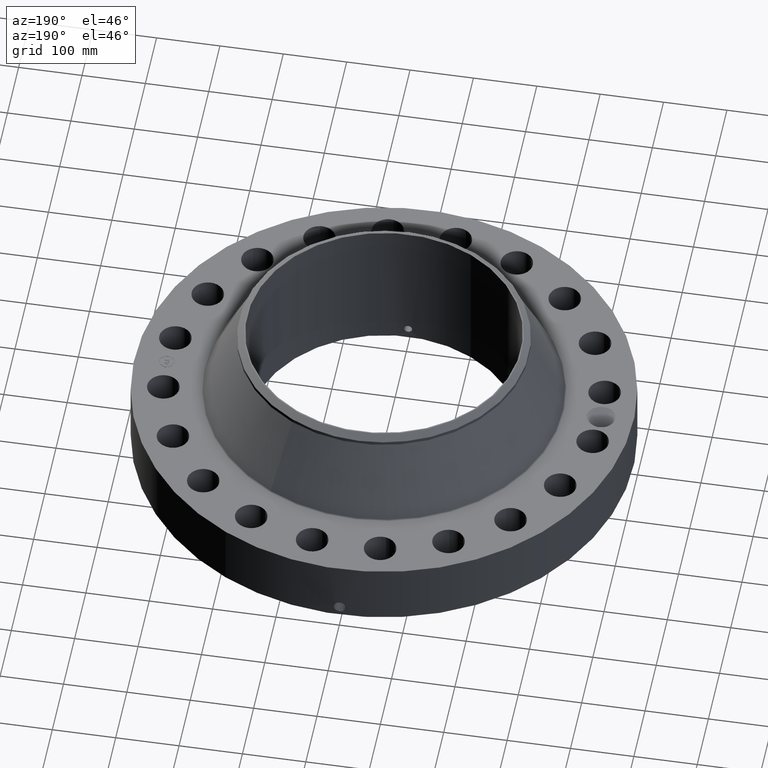
[diagram: clean part render]
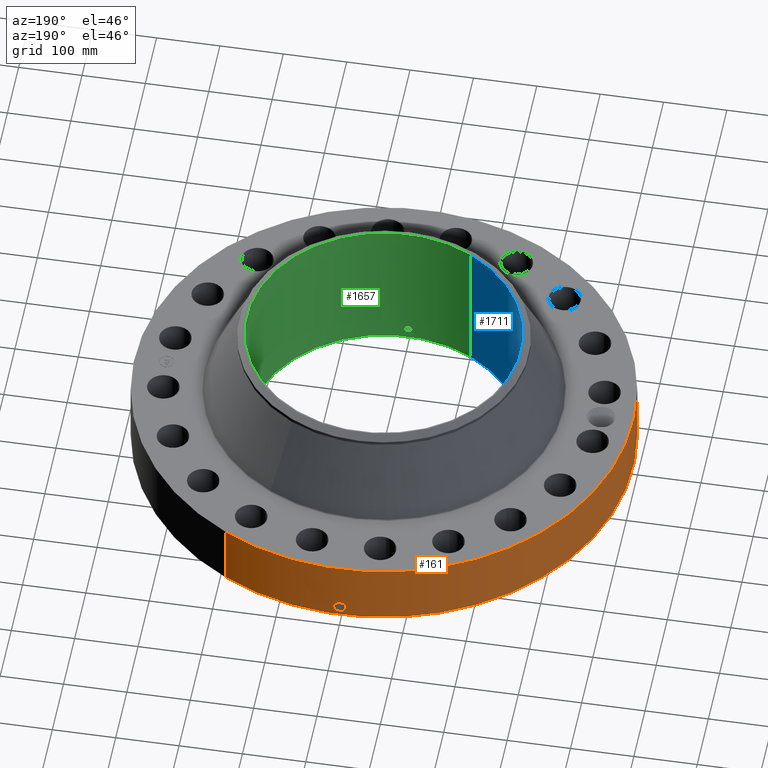
[diagram: same view with three faces highlighted in distinct colors, each labeled with its STEP entity id]
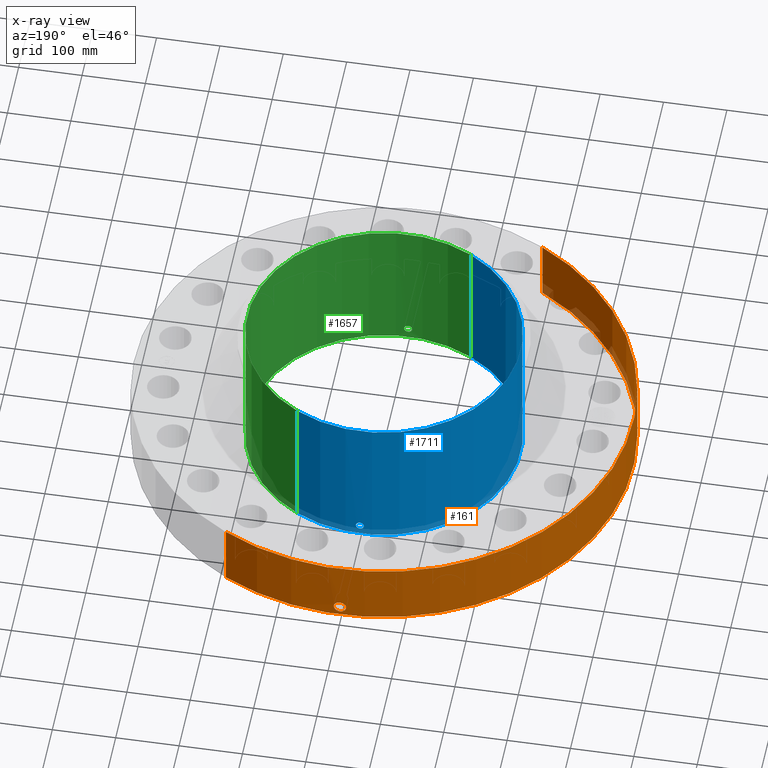
[diagram: x-ray of the same camera — body ghosted, the three highlighted faces saturated]
A machine part, auxiliary view with three faces highlighted in distinct colors.
The next image is the same camera in x-ray (body ghosted, the three faces saturated) — at least one of them is partly hidden behind the body in this view.
Their STEP definitions:

[orange] entity #161 — the highlighted cylindrical surface (partial cylindrical patch) has radius 393.7 mm, axis along (0, 0, -1).
#38=AXIS2_PLACEMENT_3D('Cylinder Axis2P3D',#35,#36,#37) ;
#42=AXIS2_PLACEMENT_3D('Circle Axis2P3D',#40,#41,$) ;
#58=AXIS2_PLACEMENT_3D('Circle Axis2P3D',#56,#57,$) ;
#35=CARTESIAN_POINT('Axis2P3D Location',(0.,0.,4.75000000002)) ;
#40=CARTESIAN_POINT('Axis2P3D Location',(0.,0.,0.250000000001)) ;
#44=CARTESIAN_POINT('Vertex',(-7.43109584839,-13.6025297094,0.250000000001)) ;
#46=CARTESIAN_POINT('Vertex',(7.43109584839,13.6025297094,0.250000000001)) ;
#49=CARTESIAN_POINT('Line Origine',(-7.43109584839,-13.6025297094,2.25000000001)) ;
#53=CARTESIAN_POINT('Vertex',(-7.43109584839,-13.6025297094,4.25000000002)) ;
#56=CARTESIAN_POINT('Axis2P3D Location',(0.,0.,4.25000000002)) ;
#60=CARTESIAN_POINT('Vertex',(7.43109584839,13.6025297094,4.25000000002)) ;
#63=CARTESIAN_POINT('Line Origine',(7.43109584839,13.6025297094,2.25000000001)) ;
#75=CARTESIAN_POINT('Control Point',(-0.000716035987873,15.4999999835,1.29411846132)) ;
#76=CARTESIAN_POINT('Control Point',(-0.0189513544755,15.4999991411,1.29408163339)) ;
#77=CARTESIAN_POINT('Control Point',(-0.0371834900596,15.4999658652,1.29263237184)) ;
#78=CARTESIAN_POINT('Control Point',(-0.0551954079875,15.4999017245,1.28978810279)) ;
#79=CARTESIAN_POINT('Vertex',(-0.000715689072531,15.4999999835,1.29411851058)) ;
#81=CARTESIAN_POINT('Vertex',(-0.0551866331972,15.4999020078,1.28978950648)) ;
#85=CARTESIAN_POINT('Control Point',(-0.0551865381655,15.4999017561,1.28978895984)) ;
#86=CARTESIAN_POINT('Control Point',(-0.0956634608954,15.4997576402,1.2853800379)) ;
#87=CARTESIAN_POINT('Control Point',(-0.135505072654,15.4994511414,1.27361031681)) ;
#88=CARTESIAN_POINT('Control Point',(-0.172208486845,15.499043333,1.2552561516)) ;
#89=CARTESIAN_POINT('Vertex',(-0.172208486845,15.499043333,1.2552561516)) ;
#93=CARTESIAN_POINT('Control Point',(-0.0310323790945,15.4999689352,0.531190572475)) ;
#94=CARTESIAN_POINT('Control Point',(-0.0962147444201,15.4998384341,0.539439149395)) ;
#95=CARTESIAN_POINT('Control Point',(-0.159342611755,15.4993694038,0.561294240934)) ;
#96=CARTESIAN_POINT('Control Point',(-0.216471151649,15.4986106127,0.596096648128)) ;
#97=CARTESIAN_POINT('Control Point',(-0.288915811012,15.4973689007,0.664188416389)) ;
#98=CARTESIAN_POINT('Control Point',(-0.336544131548,15.4963566666,0.748684191211)) ;
#99=CARTESIAN_POINT('Control Point',(-0.349591216911,15.4960623139,0.778744853324)) ;
#100=CARTESIAN_POINT('Control Point',(-0.37180929617,15.4955454003,0.848976849796)) ;
#101=CARTESIAN_POINT('Control Point',(-0.377297540876,15.4954059048,0.922143933679)) ;
#102=CARTESIAN_POINT('Control Point',(-0.375031896034,15.495462595,0.962946259405)) ;
#103=CARTESIAN_POINT('Control Point',(-0.356609233651,15.4959155882,1.06074175668)) ;
#104=CARTESIAN_POINT('Control Point',(-0.308224982643,15.4969791869,1.14796941005)) ;
#105=CARTESIAN_POINT('Control Point',(-0.269878670948,15.4977453412,1.19327204154)) ;
#106=CARTESIAN_POINT('Control Point',(-0.223570654744,15.4984726526,1.22957162246)) ;
#107=CARTESIAN_POINT('Control Point',(-0.172208486845,15.499043333,1.2552561516)) ;
#108=CARTESIAN_POINT('Vertex',(-0.0310323790945,15.4999689352,0.531190572475)) ;
#112=CARTESIAN_POINT('Control Point',(-0.0310323790945,15.4999689352,0.531190572475)) ;
#113=CARTESIAN_POINT('Control Point',(-0.0206834093071,15.4999896548,0.530874756027)) ;
#114=CARTESIAN_POINT('Control Point',(-0.010326808527,15.5000000019,0.530936298078)) ;
#115=CARTESIAN_POINT('Control Point',(2.72878354804E-006,15.5000000001,0.531374667806)) ;
#116=CARTESIAN_POINT('Vertex',(2.72878354341E-006,15.5000000001,0.531374667806)) ;
#120=CARTESIAN_POINT('Control Point',(0.192610889666,15.4988032134,0.587439234252)) ;
#121=CARTESIAN_POINT('Control Point',(0.149000022277,15.4993451861,0.562055690465)) ;
#122=CARTESIAN_POINT('Control Point',(0.101115380376,15.4997773578,0.543785163535)) ;
#123=CARTESIAN_POINT('Control Point',(0.0508052333202,15.4999999911,0.533530646345)) ;
#124=CARTESIAN_POINT('Control Point',(2.72878360312E-006,15.5000000001,0.531374667806)) ;
#125=CARTESIAN_POINT('Vertex',(0.192610889666,15.4988032134,0.587439234252)) ;
#129=CARTESIAN_POINT('Control Point',(0.192610889666,15.4988032134,0.587439234252)) ;
#130=CARTESIAN_POINT('Control Point',(0.249429569833,15.498097101,0.620510335495)) ;
#131=CARTESIAN_POINT('Control Point',(0.299467782759,15.4972148406,0.664899897692)) ;
#132=CARTESIAN_POINT('Control Point',(0.339579126535,15.4963190251,0.719041536463)) ;
#133=CARTESIAN_POINT('Control Point',(0.383746903784,15.4952584915,0.817252429271)) ;
#134=CARTESIAN_POINT('Control Point',(0.392270646327,15.495034134,0.922536354643)) ;
#135=CARTESIAN_POINT('Control Point',(0.390135577313,15.4950896723,0.962706758572)) ;
#136=CARTESIAN_POINT('Control Point',(0.375947599768,15.4954523248,1.03761773995)) ;
#137=CARTESIAN_POINT('Control Point',(0.343799045647,15.4961992285,1.10605227223)) ;
#138=CARTESIAN_POINT('Control Point',(0.324715716616,15.4966202525,1.13647425873)) ;
#139=CARTESIAN_POINT('Control Point',(0.263013421588,15.4978647737,1.21278734967)) ;
#140=CARTESIAN_POINT('Control Point',(0.179959929816,15.4991016752,1.26569223011)) ;
#141=CARTESIAN_POINT('Control Point',(0.121273454368,15.4997081071,1.28769128853)) ;
#142=CARTESIAN_POINT('Control Point',(0.060157043793,15.5000001004,1.29710367323)) ;
#143=CARTESIAN_POINT('Control Point',(-2.58579355311E-005,15.5,1.2941529843)) ;
#144=CARTESIAN_POINT('Vertex',(-2.58579355491E-005,15.5,1.2941529843)) ;
#148=CARTESIAN_POINT('Control Point',(-0.000715689062919,15.4999999835,1.29411851056)) ;
#149=CARTESIAN_POINT('Control Point',(-0.000370798054543,15.4999999995,1.29413607236)) ;
#150=CARTESIAN_POINT('Control Point',(-2.58579405827E-005,15.5,1.2941529843)) ;
#36=DIRECTION('Axis2P3D Direction',(0.,0.,-0.0393700787402)) ;
#37=DIRECTION('Axis2P3D XDirection',(0.0188750212049,0.0345504945626,0.)) ;
#41=DIRECTION('Axis2P3D Direction',(0.,0.,-0.0393700787402)) ;
#50=DIRECTION('Vector Direction',(0.,0.,-0.0393700787402)) ;
#57=DIRECTION('Axis2P3D Direction',(0.,0.,-0.0393700787402)) ;
#64=DIRECTION('Vector Direction',(0.,0.,-0.0393700787402)) ;
#51=VECTOR('Line Direction',#50,0.0393700787402) ;
#65=VECTOR('Line Direction',#64,0.0393700787402) ;
#69=ORIENTED_EDGE('',*,*,#48,.F.) ;
#70=ORIENTED_EDGE('',*,*,#55,.T.) ;
#71=ORIENTED_EDGE('',*,*,#62,.T.) ;
#72=ORIENTED_EDGE('',*,*,#67,.F.) ;
#153=ORIENTED_EDGE('',*,*,#83,.T.) ;
#154=ORIENTED_EDGE('',*,*,#91,.T.) ;
#155=ORIENTED_EDGE('',*,*,#110,.F.) ;
#156=ORIENTED_EDGE('',*,*,#118,.T.) ;
#157=ORIENTED_EDGE('',*,*,#127,.F.) ;
#158=ORIENTED_EDGE('',*,*,#146,.T.) ;
#159=ORIENTED_EDGE('',*,*,#151,.F.) ;
#160=FACE_BOUND('',#152,.T.) ;
#161=ADVANCED_FACE('PartBody',(#73,#160),#39,.T.) ;
#74=B_SPLINE_CURVE_WITH_KNOTS('',3,(#75,#76,#77,#78),.UNSPECIFIED.,.F.,.U.,(4,4),(34.6166187264,36.6396541764),.UNSPECIFIED.) ;
#84=B_SPLINE_CURVE_WITH_KNOTS('',3,(#85,#86,#87,#88),.UNSPECIFIED.,.F.,.U.,(4,4),(0.,4.57505212791),.UNSPECIFIED.) ;
#92=B_SPLINE_CURVE_WITH_KNOTS('',5,(#93,#94,#95,#96,#97,#98,#99,#100,#101,#102,#103,#104,#105,#106,#107),.UNSPECIFIED.,.F.,.U.,(6,3,3,3,6),(0.,11.4182832318,17.2583175927,24.6133077901,35.2837322421),.UNSPECIFIED.) ;
#111=B_SPLINE_CURVE_WITH_KNOTS('',3,(#112,#113,#114,#115),.UNSPECIFIED.,.F.,.U.,(4,4),(0.,1.07955746268),.UNSPECIFIED.) ;
#119=B_SPLINE_CURVE_WITH_KNOTS('',4,(#120,#121,#122,#123,#124),.UNSPECIFIED.,.F.,.U.,(5,5),(0.,7.07927452705),.UNSPECIFIED.) ;
#128=B_SPLINE_CURVE_WITH_KNOTS('',5,(#129,#130,#131,#132,#133,#134,#135,#136,#137,#138,#139,#140,#141,#142,#143),.UNSPECIFIED.,.F.,.U.,(6,3,3,3,6),(0.,11.5290940074,18.6104401184,25.0339241022,36.2833576036),.UNSPECIFIED.) ;
#147=B_SPLINE_CURVE_WITH_KNOTS('',2,(#148,#149,#150),.UNSPECIFIED.,.F.,.U.,(3,3),(1.02129691838,1.0470875062),.UNSPECIFIED.) ;
#43=CIRCLE('generated circle',#42,15.5000000001) ;
#59=CIRCLE('generated circle',#58,15.5000000001) ;
#39=CYLINDRICAL_SURFACE('generated cylinder',#38,15.5000000001) ;
#48=EDGE_CURVE('',#45,#47,#43,.T.) ;
#55=EDGE_CURVE('',#45,#54,#52,.F.) ;
#62=EDGE_CURVE('',#54,#61,#59,.T.) ;
#67=EDGE_CURVE('',#47,#61,#66,.F.) ;
#83=EDGE_CURVE('',#80,#82,#74,.T.) ;
#91=EDGE_CURVE('',#82,#90,#84,.T.) ;
#110=EDGE_CURVE('',#109,#90,#92,.T.) ;
#118=EDGE_CURVE('',#109,#117,#111,.T.) ;
#127=EDGE_CURVE('',#126,#117,#119,.T.) ;
#146=EDGE_CURVE('',#126,#145,#128,.T.) ;
#151=EDGE_CURVE('',#80,#145,#147,.T.) ;
#68=EDGE_LOOP('',(#69,#70,#71,#72)) ;
#152=EDGE_LOOP('',(#153,#154,#155,#156,#157,#158,#159)) ;
#73=FACE_OUTER_BOUND('',#68,.T.) ;
#52=LINE('Line',#49,#51) ;
#66=LINE('Line',#63,#65) ;
#45=VERTEX_POINT('',#44) ;
#47=VERTEX_POINT('',#46) ;
#54=VERTEX_POINT('',#53) ;
#61=VERTEX_POINT('',#60) ;
#80=VERTEX_POINT('',#79) ;
#82=VERTEX_POINT('',#81) ;
#90=VERTEX_POINT('',#89) ;
#109=VERTEX_POINT('',#108) ;
#117=VERTEX_POINT('',#116) ;
#126=VERTEX_POINT('',#125) ;
#145=VERTEX_POINT('',#144) ;

[blue] entity #1711 — the highlighted cylindrical surface (partial cylindrical patch) has radius 215.9 mm, axis along (0, 0, -1).
#269=AXIS2_PLACEMENT_3D('Circle Axis2P3D',#267,#268,$) ;
#1588=AXIS2_PLACEMENT_3D('Cylinder Axis2P3D',#1585,#1586,#1587) ;
#1660=AXIS2_PLACEMENT_3D('Circle Axis2P3D',#1658,#1659,$) ;
#262=CARTESIAN_POINT('Vertex',(4.07511707815,7.4594517761,0.250000000001)) ;
#264=CARTESIAN_POINT('Vertex',(-4.07511707815,-7.4594517761,0.250000000001)) ;
#267=CARTESIAN_POINT('Axis2P3D Location',(0.,0.,0.250000000001)) ;
#1585=CARTESIAN_POINT('Axis2P3D Location',(0.,0.,4.75000000002)) ;
#1594=CARTESIAN_POINT('Vertex',(4.07511707815,7.4594517761,9.25000000004)) ;
#1596=CARTESIAN_POINT('Vertex',(-4.07511707815,-7.4594517761,9.25000000004)) ;
#1599=CARTESIAN_POINT('Line Origine',(4.07511707815,7.4594517761,4.75000000002)) ;
#1604=CARTESIAN_POINT('Line Origine',(-4.07511707815,-7.4594517761,4.75000000002)) ;
#1658=CARTESIAN_POINT('Axis2P3D Location',(0.,0.,9.25000000004)) ;
#1670=CARTESIAN_POINT('Control Point',(0.219395640473,8.49716809022,1.05985638466)) ;
#1671=CARTESIAN_POINT('Control Point',(0.194443120267,8.49781236066,1.10553166652)) ;
#1672=CARTESIAN_POINT('Control Point',(0.157605673588,8.4986718436,1.14471106185)) ;
#1673=CARTESIAN_POINT('Control Point',(0.111109047536,8.49950770969,1.17324265379)) ;
#1674=CARTESIAN_POINT('Control Point',(0.0336745179317,8.50017275739,1.19588241444)) ;
#1675=CARTESIAN_POINT('Control Point',(-0.044669938011,8.49994295238,1.18805652843)) ;
#1676=CARTESIAN_POINT('Control Point',(-0.0702993750434,8.49976455241,1.18204411458)) ;
#1677=CARTESIAN_POINT('Control Point',(-0.143955109886,8.49897618111,1.15421280447)) ;
#1678=CARTESIAN_POINT('Control Point',(-0.203242425445,8.49768931438,1.09949946125)) ;
#1679=CARTESIAN_POINT('Control Point',(-0.232208125494,8.49684524708,1.05326122503)) ;
#1680=CARTESIAN_POINT('Control Point',(-0.255840248864,8.49615133503,0.9751141281)) ;
#1681=CARTESIAN_POINT('Control Point',(-0.248283243814,8.49637304961,0.895748626888)) ;
#1682=CARTESIAN_POINT('Control Point',(-0.242049456258,8.496558599,0.869185395432)) ;
#1683=CARTESIAN_POINT('Control Point',(-0.232315759571,8.49683449463,0.843793734723)) ;
#1684=CARTESIAN_POINT('Control Point',(-0.219395640473,8.49716809022,0.820143615352)) ;
#1685=CARTESIAN_POINT('Vertex',(0.219395640473,8.49716809022,1.05985638466)) ;
#1687=CARTESIAN_POINT('Vertex',(-0.219395640473,8.49716809022,0.820143615352)) ;
#1691=CARTESIAN_POINT('Control Point',(-0.219395640473,8.49716809022,0.820143615352)) ;
#1692=CARTESIAN_POINT('Control Point',(-0.194443120249,8.49781236066,0.774468333456)) ;
#1693=CARTESIAN_POINT('Control Point',(-0.157605673534,8.4986718436,0.735288938105)) ;
#1694=CARTESIAN_POINT('Control Point',(-0.111109047613,8.49950770969,0.706757346244)) ;
#1695=CARTESIAN_POINT('Control Point',(-0.0336745179481,8.50017275739,0.684117585558)) ;
#1696=CARTESIAN_POINT('Control Point',(0.0446699380573,8.49994295238,0.691943471585)) ;
#1697=CARTESIAN_POINT('Control Point',(0.0702993749965,8.49976455241,0.697955885414)) ;
#1698=CARTESIAN_POINT('Control Point',(0.143955109906,8.49897618111,0.725787195536)) ;
#1699=CARTESIAN_POINT('Control Point',(0.203242425508,8.49768931438,0.780500538817)) ;
#1700=CARTESIAN_POINT('Control Point',(0.232208125469,8.49684524708,0.826738774888)) ;
#1701=CARTESIAN_POINT('Control Point',(0.255840248857,8.49615133503,0.904885871829)) ;
#1702=CARTESIAN_POINT('Control Point',(0.248283243821,8.49637304961,0.984251373048)) ;
#1703=CARTESIAN_POINT('Control Point',(0.242049456233,8.496558599,1.01081460464)) ;
#1704=CARTESIAN_POINT('Control Point',(0.232315759554,8.49683449463,1.03620626532)) ;
#1705=CARTESIAN_POINT('Control Point',(0.219395640473,8.49716809022,1.05985638466)) ;
#268=DIRECTION('Axis2P3D Direction',(0.,0.,-0.0393700787402)) ;
#1586=DIRECTION('Axis2P3D Direction',(0.,0.,-0.0393700787402)) ;
#1587=DIRECTION('Axis2P3D XDirection',(-0.0188750212049,-0.0345504945626,0.)) ;
#1600=DIRECTION('Vector Direction',(0.,0.,-0.0393700787402)) ;
#1605=DIRECTION('Vector Direction',(0.,0.,-0.0393700787402)) ;
#1659=DIRECTION('Axis2P3D Direction',(0.,0.,-0.0393700787402)) ;
#1601=VECTOR('Line Direction',#1600,0.0393700787402) ;
#1606=VECTOR('Line Direction',#1605,0.0393700787402) ;
#1664=ORIENTED_EDGE('',*,*,#1662,.F.) ;
#1665=ORIENTED_EDGE('',*,*,#1608,.T.) ;
#1666=ORIENTED_EDGE('',*,*,#271,.T.) ;
#1667=ORIENTED_EDGE('',*,*,#1603,.F.) ;
#1708=ORIENTED_EDGE('',*,*,#1689,.F.) ;
#1709=ORIENTED_EDGE('',*,*,#1706,.F.) ;
#1710=FACE_BOUND('',#1707,.T.) ;
#1711=ADVANCED_FACE('PartBody',(#1668,#1710),#1589,.F.) ;
#1669=B_SPLINE_CURVE_WITH_KNOTS('',5,(#1670,#1671,#1672,#1673,#1674,#1675,#1676,#1677,#1678,#1679,#1680,#1681,#1682,#1683,#1684),.UNSPECIFIED.,.F.,.U.,(6,3,3,3,6),(0.,9.34857122725,14.0228372771,23.372871934,28.2134512681),.UNSPECIFIED.) ;
#1690=B_SPLINE_CURVE_WITH_KNOTS('',5,(#1691,#1692,#1693,#1694,#1695,#1696,#1697,#1698,#1699,#1700,#1701,#1702,#1703,#1704,#1705),.UNSPECIFIED.,.F.,.U.,(6,3,3,3,6),(0.,9.3485712341,14.0228372883,23.3728719527,28.2134512806),.UNSPECIFIED.) ;
#270=CIRCLE('generated circle',#269,8.50000000003) ;
#1661=CIRCLE('generated circle',#1660,8.50000000003) ;
#1589=CYLINDRICAL_SURFACE('generated cylinder',#1588,8.50000000003) ;
#271=EDGE_CURVE('',#265,#263,#270,.T.) ;
#1603=EDGE_CURVE('',#1595,#263,#1602,.T.) ;
#1608=EDGE_CURVE('',#1597,#265,#1607,.T.) ;
#1662=EDGE_CURVE('',#1597,#1595,#1661,.T.) ;
#1689=EDGE_CURVE('',#1686,#1688,#1669,.T.) ;
#1706=EDGE_CURVE('',#1688,#1686,#1690,.T.) ;
#1663=EDGE_LOOP('',(#1664,#1665,#1666,#1667)) ;
#1707=EDGE_LOOP('',(#1708,#1709)) ;
#1668=FACE_OUTER_BOUND('',#1663,.T.) ;
#1602=LINE('Line',#1599,#1601) ;
#1607=LINE('Line',#1604,#1606) ;
#263=VERTEX_POINT('',#262) ;
#265=VERTEX_POINT('',#264) ;
#1595=VERTEX_POINT('',#1594) ;
#1597=VERTEX_POINT('',#1596) ;
#1686=VERTEX_POINT('',#1685) ;
#1688=VERTEX_POINT('',#1687) ;

[green] entity #1657 — the highlighted cylindrical surface (partial cylindrical patch) has radius 215.9 mm, axis along (0, 0, -1).
#260=AXIS2_PLACEMENT_3D('Circle Axis2P3D',#258,#259,$) ;
#1588=AXIS2_PLACEMENT_3D('Cylinder Axis2P3D',#1585,#1586,#1587) ;
#1592=AXIS2_PLACEMENT_3D('Circle Axis2P3D',#1590,#1591,$) ;
#258=CARTESIAN_POINT('Axis2P3D Location',(0.,0.,0.250000000001)) ;
#262=CARTESIAN_POINT('Vertex',(4.07511707815,7.4594517761,0.250000000001)) ;
#264=CARTESIAN_POINT('Vertex',(-4.07511707815,-7.4594517761,0.250000000001)) ;
#1585=CARTESIAN_POINT('Axis2P3D Location',(0.,0.,4.75000000002)) ;
#1590=CARTESIAN_POINT('Axis2P3D Location',(0.,0.,9.25000000004)) ;
#1594=CARTESIAN_POINT('Vertex',(4.07511707815,7.4594517761,9.25000000004)) ;
#1596=CARTESIAN_POINT('Vertex',(-4.07511707815,-7.4594517761,9.25000000004)) ;
#1599=CARTESIAN_POINT('Line Origine',(4.07511707815,7.4594517761,4.75000000002)) ;
#1604=CARTESIAN_POINT('Line Origine',(-4.07511707815,-7.4594517761,4.75000000002)) ;
#1616=CARTESIAN_POINT('Control Point',(0.219395640473,-8.49716809022,0.820143615352)) ;
#1617=CARTESIAN_POINT('Control Point',(0.194443120274,-8.49781236066,0.774468333501)) ;
#1618=CARTESIAN_POINT('Control Point',(0.157605673608,-8.4986718436,0.735288938183)) ;
#1619=CARTESIAN_POINT('Control Point',(0.111109047509,-8.49950770969,0.706757346213)) ;
#1620=CARTESIAN_POINT('Control Point',(0.0336745178972,-8.50017275739,0.684117585564)) ;
#1621=CARTESIAN_POINT('Control Point',(-0.0446699380533,-8.49994295238,0.691943471585)) ;
#1622=CARTESIAN_POINT('Control Point',(-0.0702993750033,-8.49976455241,0.697955885416)) ;
#1623=CARTESIAN_POINT('Control Point',(-0.143955109888,-8.49897618111,0.725787195531)) ;
#1624=CARTESIAN_POINT('Control Point',(-0.203242425476,-8.49768931438,0.780500538787)) ;
#1625=CARTESIAN_POINT('Control Point',(-0.232208125482,-8.49684524708,0.826738774933)) ;
#1626=CARTESIAN_POINT('Control Point',(-0.255840248866,-8.49615133503,0.904885871888)) ;
#1627=CARTESIAN_POINT('Control Point',(-0.248283243814,-8.49637304961,0.98425137312)) ;
#1628=CARTESIAN_POINT('Control Point',(-0.242049456258,-8.496558599,1.01081460458)) ;
#1629=CARTESIAN_POINT('Control Point',(-0.232315759571,-8.49683449463,1.03620626528)) ;
#1630=CARTESIAN_POINT('Control Point',(-0.219395640473,-8.49716809022,1.05985638466)) ;
#1631=CARTESIAN_POINT('Vertex',(0.219395640473,-8.49716809022,0.820143615352)) ;
#1633=CARTESIAN_POINT('Vertex',(-0.219395640473,-8.49716809022,1.05985638466)) ;
#1637=CARTESIAN_POINT('Control Point',(-0.219395640473,-8.49716809022,1.05985638466)) ;
#1638=CARTESIAN_POINT('Control Point',(-0.194443120262,-8.49781236066,1.10553166653)) ;
#1639=CARTESIAN_POINT('Control Point',(-0.157605673572,-8.4986718436,1.14471106186)) ;
#1640=CARTESIAN_POINT('Control Point',(-0.111109047564,-8.49950770969,1.17324265378)) ;
#1641=CARTESIAN_POINT('Control Point',(-0.0336745179262,-8.50017275739,1.19588241445)) ;
#1642=CARTESIAN_POINT('Control Point',(0.0446699380518,-8.49994295238,1.18805652842)) ;
#1643=CARTESIAN_POINT('Control Point',(0.0702993749935,-8.49976455241,1.18204411459)) ;
#1644=CARTESIAN_POINT('Control Point',(0.143955109837,-8.49897618111,1.1542128045)) ;
#1645=CARTESIAN_POINT('Control Point',(0.2032424254,-8.49768931438,1.09949946129)) ;
#1646=CARTESIAN_POINT('Control Point',(0.232208125508,-8.49684524708,1.05326122499)) ;
#1647=CARTESIAN_POINT('Control Point',(0.25584024886,-8.49615133503,0.975114128077)) ;
#1648=CARTESIAN_POINT('Control Point',(0.248283243815,-8.49637304961,0.895748626892)) ;
#1649=CARTESIAN_POINT('Control Point',(0.242049456259,-8.496558599,0.869185395433)) ;
#1650=CARTESIAN_POINT('Control Point',(0.232315759571,-8.49683449463,0.843793734723)) ;
#1651=CARTESIAN_POINT('Control Point',(0.219395640473,-8.49716809022,0.820143615352)) ;
#259=DIRECTION('Axis2P3D Direction',(0.,0.,-0.0393700787402)) ;
#1586=DIRECTION('Axis2P3D Direction',(0.,0.,-0.0393700787402)) ;
#1587=DIRECTION('Axis2P3D XDirection',(-0.0188750212049,-0.0345504945626,0.)) ;
#1591=DIRECTION('Axis2P3D Direction',(0.,0.,-0.0393700787402)) ;
#1600=DIRECTION('Vector Direction',(0.,0.,-0.0393700787402)) ;
#1605=DIRECTION('Vector Direction',(0.,0.,-0.0393700787402)) ;
#1601=VECTOR('Line Direction',#1600,0.0393700787402) ;
#1606=VECTOR('Line Direction',#1605,0.0393700787402) ;
#1610=ORIENTED_EDGE('',*,*,#1598,.F.) ;
#1611=ORIENTED_EDGE('',*,*,#1603,.T.) ;
#1612=ORIENTED_EDGE('',*,*,#266,.T.) ;
#1613=ORIENTED_EDGE('',*,*,#1608,.F.) ;
#1654=ORIENTED_EDGE('',*,*,#1635,.F.) ;
#1655=ORIENTED_EDGE('',*,*,#1652,.F.) ;
#1656=FACE_BOUND('',#1653,.T.) ;
#1657=ADVANCED_FACE('PartBody',(#1614,#1656),#1589,.F.) ;
#1615=B_SPLINE_CURVE_WITH_KNOTS('',5,(#1616,#1617,#1618,#1619,#1620,#1621,#1622,#1623,#1624,#1625,#1626,#1627,#1628,#1629,#1630),.UNSPECIFIED.,.F.,.U.,(6,3,3,3,6),(0.,9.34857122479,14.0228372785,23.3728719389,28.2134512731),.UNSPECIFIED.) ;
#1636=B_SPLINE_CURVE_WITH_KNOTS('',5,(#1637,#1638,#1639,#1640,#1641,#1642,#1643,#1644,#1645,#1646,#1647,#1648,#1649,#1650,#1651),.UNSPECIFIED.,.F.,.U.,(6,3,3,3,6),(0.,9.34857122926,14.0228372834,23.3728719352,28.2134512695),.UNSPECIFIED.) ;
#261=CIRCLE('generated circle',#260,8.50000000003) ;
#1593=CIRCLE('generated circle',#1592,8.50000000003) ;
#1589=CYLINDRICAL_SURFACE('generated cylinder',#1588,8.50000000003) ;
#266=EDGE_CURVE('',#263,#265,#261,.T.) ;
#1598=EDGE_CURVE('',#1595,#1597,#1593,.T.) ;
#1603=EDGE_CURVE('',#1595,#263,#1602,.T.) ;
#1608=EDGE_CURVE('',#1597,#265,#1607,.T.) ;
#1635=EDGE_CURVE('',#1632,#1634,#1615,.T.) ;
#1652=EDGE_CURVE('',#1634,#1632,#1636,.T.) ;
#1609=EDGE_LOOP('',(#1610,#1611,#1612,#1613)) ;
#1653=EDGE_LOOP('',(#1654,#1655)) ;
#1614=FACE_OUTER_BOUND('',#1609,.T.) ;
#1602=LINE('Line',#1599,#1601) ;
#1607=LINE('Line',#1604,#1606) ;
#263=VERTEX_POINT('',#262) ;
#265=VERTEX_POINT('',#264) ;
#1595=VERTEX_POINT('',#1594) ;
#1597=VERTEX_POINT('',#1596) ;
#1632=VERTEX_POINT('',#1631) ;
#1634=VERTEX_POINT('',#1633) ;